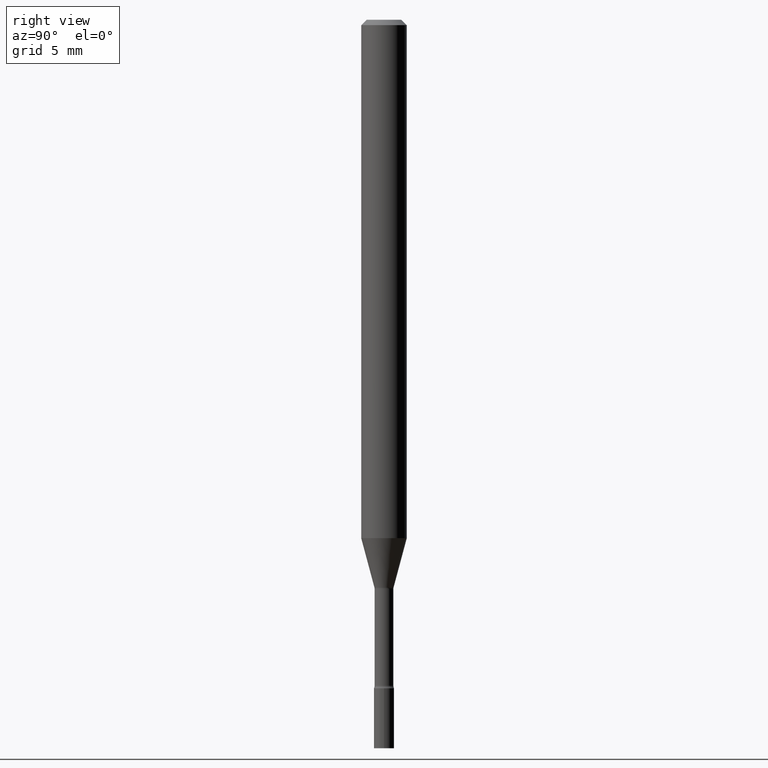
[diagram: clean part render]
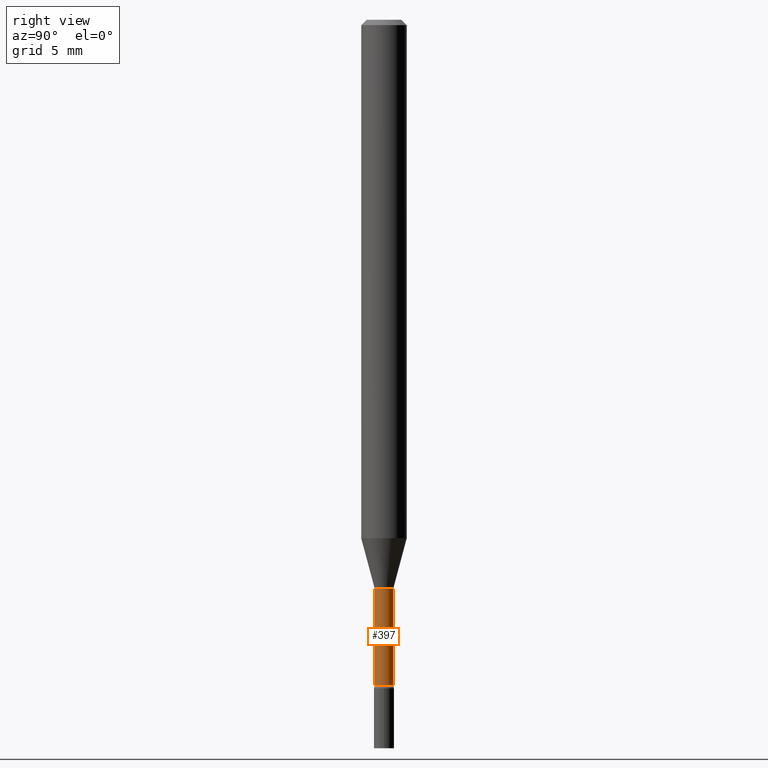
[diagram: same view with one face highlighted and labeled with its STEP entity id]
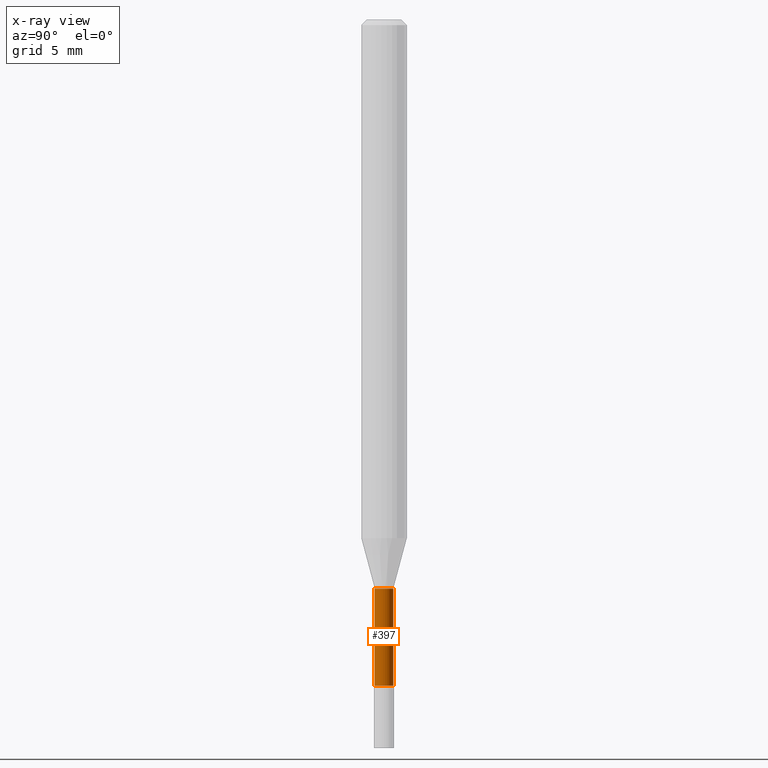
[diagram: x-ray of the same camera — body ghosted, the highlighted face saturated]
A machine part, right view. The second image highlights one B-rep face of the part: STEP entity #397.
The next image is the same camera in x-ray: the body ghosted, the highlighted face saturated — about 0% of this face is hidden behind the body in this view.
In plain terms, the highlighted cylindrical surface (edge-blend (fillet) strip) has radius 0.6566 mm, axis along (-0, 0, 1).
Its self-contained STEP definition (entity closure, byte-faithful):
#7 = DIRECTION ( 'NONE',  ( -2.445546163158824797E-29, 3.491370559253938417E-15, 1.000000000000000000 ) ) ;
#29 = ORIENTED_EDGE ( 'NONE', *, *, #48, .T. ) ;
#39 = DIRECTION ( 'NONE',  ( -6.982962677686266711E-15, -1.000000000000000000, 0.000000000000000000 ) ) ;
#48 = EDGE_CURVE ( 'NONE', #417, #215, #319, .T. ) ;
#88 = DIRECTION ( 'NONE',  ( -2.445546163158824797E-29, 3.491370559253938417E-15, 1.000000000000000000 ) ) ;
#109 = EDGE_CURVE ( 'NONE', #235, #215, #428, .T. ) ;
#136 = VECTOR ( 'NONE', #477, 39.37007874015748143 ) ;
#148 = DIRECTION ( 'NONE',  ( -2.445546163158825078E-29, 3.491370559253938417E-15, 1.000000000000000000 ) ) ;
#154 = LINE ( 'NONE', #342, #161 ) ;
#161 = VECTOR ( 'NONE', #148, 39.37007874015748143 ) ;
#163 = AXIS2_PLACEMENT_3D ( 'NONE', #486, #7, #170 ) ;
#170 = DIRECTION ( 'NONE',  ( -6.982962677686265922E-15, -1.000000000000000000, 0.000000000000000000 ) ) ;
#188 = CIRCLE ( 'NONE', #163, 0.02585000000000001186 ) ;
#204 = CYLINDRICAL_SURFACE ( 'NONE', #285, 0.02585000000000000492 ) ;
#209 = DIRECTION ( 'NONE',  ( -6.982962677686264344E-15, -1.000000000000000000, 3.491370559253938417E-15 ) ) ;
#215 = VERTEX_POINT ( 'NONE', #224 ) ;
#224 = CARTESIAN_POINT ( 'NONE',  ( 1.836752971940306269E-16, 0.02584999999999454401, -1.561974787463811021 ) ) ;
#226 = CARTESIAN_POINT ( 'NONE',  ( -1.805095852181453325E-16, -0.02585000000000639564, -1.828160592130893436 ) ) ;
#235 = VERTEX_POINT ( 'NONE', #468 ) ;
#245 = EDGE_CURVE ( 'NONE', #470, #235, #154, .T. ) ;
#250 = EDGE_LOOP ( 'NONE', ( #476, #29, #505, #257 ) ) ;
#257 = ORIENTED_EDGE ( 'NONE', *, *, #245, .F. ) ;
#285 = AXIS2_PLACEMENT_3D ( 'NONE', #494, #88, #209 ) ;
#289 = CARTESIAN_POINT ( 'NONE',  ( 1.836752971939858837E-16, 0.02585000000000000492, -9.025192895671432946E-17 ) ) ;
#309 = EDGE_CURVE ( 'NONE', #470, #417, #188, .T. ) ;
#310 = CARTESIAN_POINT ( 'NONE',  ( 3.819881448432944425E-29, -5.453432787248077900E-15, -1.561974787463811021 ) ) ;
#319 = LINE ( 'NONE', #289, #136 ) ;
#342 = CARTESIAN_POINT ( 'NONE',  ( -1.805095852181899771E-16, -0.02585000000000000492, 9.025192895671432946E-17 ) ) ;
#395 = DIRECTION ( 'NONE',  ( -2.445546163158824797E-29, 3.491370559253938417E-15, 1.000000000000000000 ) ) ;
#397 = ADVANCED_FACE ( 'NONE', ( #442 ), #204, .T. ) ;
#410 = CARTESIAN_POINT ( 'NONE',  ( 1.895372747640516213E-16, 0.02584999999999363154, -1.828160592130893436 ) ) ;
#417 = VERTEX_POINT ( 'NONE', #410 ) ;
#428 = CIRCLE ( 'NONE', #510, 0.02584999999999999798 ) ;
#442 = FACE_OUTER_BOUND ( 'NONE', #250, .T. ) ;
#468 = CARTESIAN_POINT ( 'NONE',  ( -1.805095852181517913E-16, -0.02585000000000545542, -1.561974787463811021 ) ) ;
#470 = VERTEX_POINT ( 'NONE', #226 ) ;
#476 = ORIENTED_EDGE ( 'NONE', *, *, #309, .T. ) ;
#477 = DIRECTION ( 'NONE',  ( -2.445546163158825078E-29, 3.491370559253938417E-15, 1.000000000000000000 ) ) ;
#486 = CARTESIAN_POINT ( 'NONE',  ( 4.470851121723871370E-29, -6.382786068954048975E-15, -1.828160592130893436 ) ) ;
#494 = CARTESIAN_POINT ( 'NONE',  ( 0.000000000000000000, 0.000000000000000000, 0.000000000000000000 ) ) ;
#505 = ORIENTED_EDGE ( 'NONE', *, *, #109, .F. ) ;
#510 = AXIS2_PLACEMENT_3D ( 'NONE', #310, #395, #39 ) ;